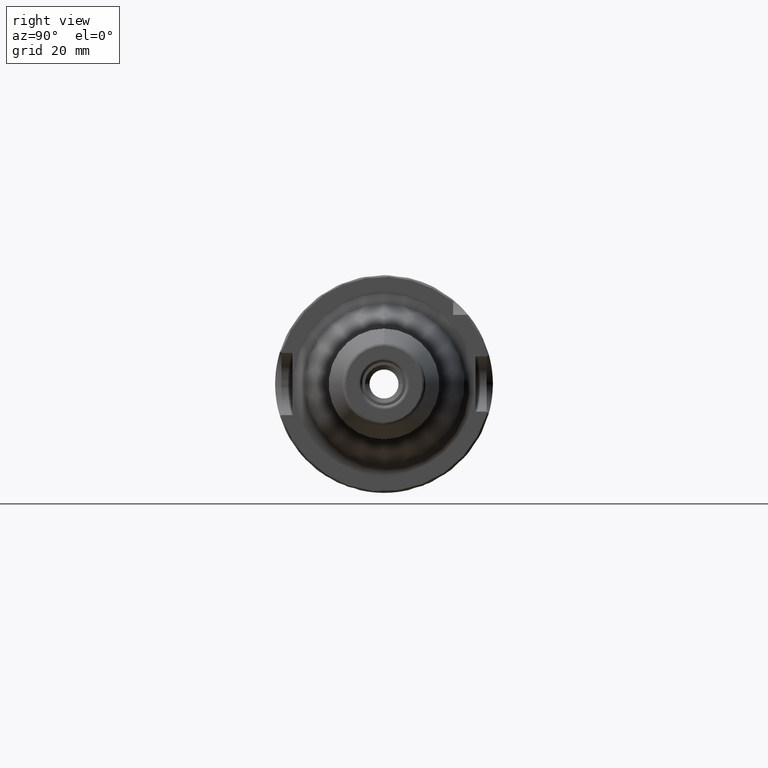
[diagram: clean part render]
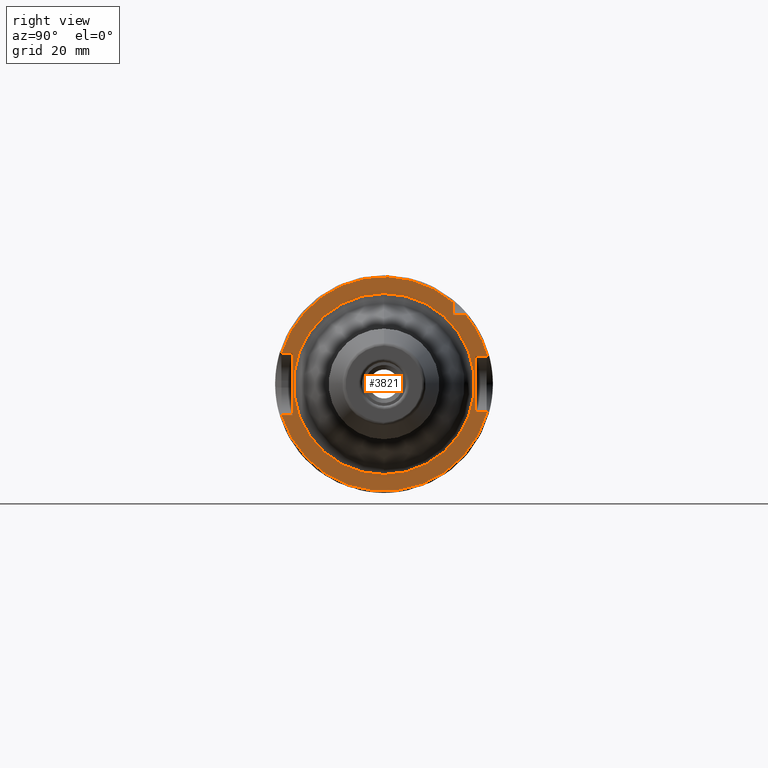
[diagram: same view with one face highlighted and labeled with its STEP entity id]
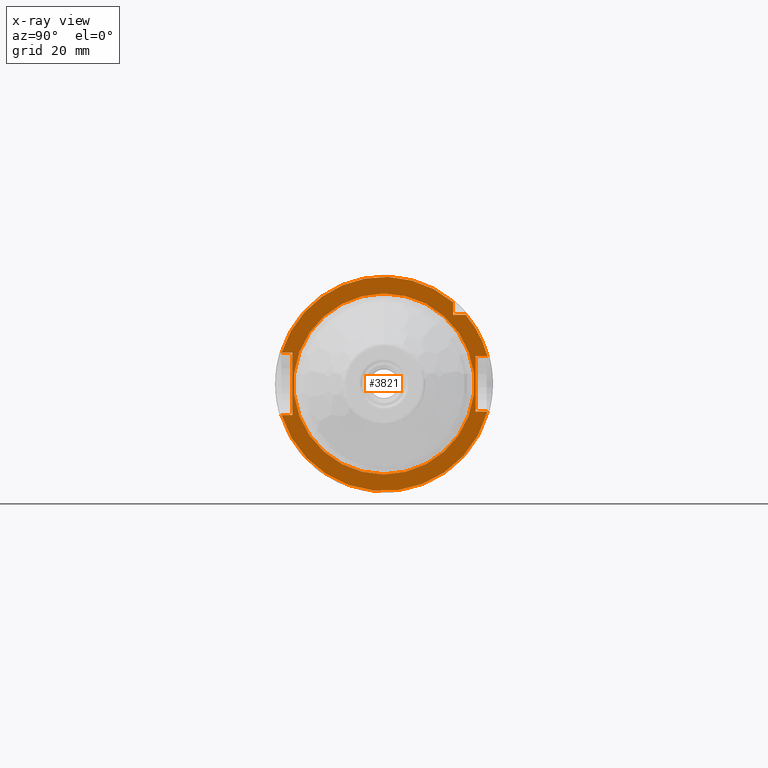
[diagram: x-ray of the same camera — body ghosted, the highlighted face saturated]
A machine part, right view. The second image highlights one B-rep face of the part: STEP entity #3821.
The next image is the same camera in x-ray: the body ghosted, the highlighted face saturated — about 0% of this face is hidden behind the body in this view.
In plain terms, the highlighted planar face has unit normal (1, 0, 0).
Its self-contained STEP definition (entity closure, byte-faithful):
#658=DIRECTION('',(0.E0,1.E0,0.E0));
#659=VECTOR('',#658,3.164793948383E0);
#660=CARTESIAN_POINT('',(2.6E1,-2.966479394838E1,-9.E0));
#661=LINE('',#660,#659);
#662=DIRECTION('',(0.E0,0.E0,1.E0));
#663=VECTOR('',#662,1.8E1);
#664=CARTESIAN_POINT('',(2.6E1,-2.65E1,-9.E0));
#665=LINE('',#664,#663);
#666=DIRECTION('',(0.E0,1.E0,0.E0));
#667=VECTOR('',#666,3.164793948383E0);
#668=CARTESIAN_POINT('',(2.6E1,-2.966479394838E1,9.E0));
#669=LINE('',#668,#667);
#670=DIRECTION('',(0.E0,0.E0,-1.E0));
#671=VECTOR('',#670,3.685438564654E0);
#672=CARTESIAN_POINT('',(2.6E1,2.E1,2.368543856465E1));
#673=LINE('',#672,#671);
#674=DIRECTION('',(0.E0,-1.E0,0.E0));
#675=VECTOR('',#674,3.685438564654E0);
#676=CARTESIAN_POINT('',(2.6E1,2.368543856465E1,2.E1));
#677=LINE('',#676,#675);
#678=DIRECTION('',(0.E0,-7.071067811866E-1,-7.071067811865E-1));
#679=VECTOR('',#678,2.782025045905E-1);
#680=CARTESIAN_POINT('',(2.6E1,2.989671887754E1,8.196718877539E0));
#681=LINE('',#680,#679);
#682=DIRECTION('',(0.E0,-1.E0,0.E0));
#683=VECTOR('',#682,3.2E0);
#684=CARTESIAN_POINT('',(2.6E1,2.97E1,8.E0));
#685=LINE('',#684,#683);
#686=DIRECTION('',(0.E0,0.E0,1.E0));
#687=VECTOR('',#686,1.6E1);
#688=CARTESIAN_POINT('',(2.6E1,2.65E1,-8.E0));
#689=LINE('',#688,#687);
#690=DIRECTION('',(0.E0,-1.E0,0.E0));
#691=VECTOR('',#690,3.2E0);
#692=CARTESIAN_POINT('',(2.6E1,2.97E1,-8.E0));
#693=LINE('',#692,#691);
#694=DIRECTION('',(0.E0,-7.071067811865E-1,7.071067811866E-1));
#695=VECTOR('',#694,2.782025045903E-1);
#696=CARTESIAN_POINT('',(2.6E1,2.989671887754E1,-8.196718877539E0));
#697=LINE('',#696,#695);
#698=CARTESIAN_POINT('',(2.6E1,0.E0,0.E0));
#699=DIRECTION('',(1.E0,0.E0,0.E0));
#700=DIRECTION('',(0.E0,0.E0,-1.E0));
#701=AXIS2_PLACEMENT_3D('',#698,#699,#700);
#703=CARTESIAN_POINT('',(2.6E1,0.E0,0.E0));
#704=DIRECTION('',(1.E0,0.E0,0.E0));
#705=DIRECTION('',(0.E0,0.E0,1.E0));
#706=AXIS2_PLACEMENT_3D('',#703,#704,#705);
#713=CARTESIAN_POINT('',(2.6E1,0.E0,0.E0));
#714=DIRECTION('',(1.E0,0.E0,0.E0));
#715=DIRECTION('',(0.E0,-9.569288370446E-1,-2.903225806452E-1));
#716=AXIS2_PLACEMENT_3D('',#713,#714,#715);
#838=CARTESIAN_POINT('',(2.6E1,2.989671887754E1,-8.196718877539E0));
#2016=CARTESIAN_POINT('',(2.6E1,-2.966479394838E1,9.E0));
#2151=CARTESIAN_POINT('',(2.6E1,-2.966479394838E1,-9.E0));
#2344=CARTESIAN_POINT('',(2.6E1,2.989671887754E1,8.196718877539E0));
#2363=CARTESIAN_POINT('',(2.6E1,0.E0,0.E0));
#2364=DIRECTION('',(1.E0,0.E0,0.E0));
#2365=DIRECTION('',(0.E0,9.644102863722E-1,2.644102863722E-1));
#2366=AXIS2_PLACEMENT_3D('',#2363,#2364,#2365);
#2368=CARTESIAN_POINT('',(2.6E1,2.368543856465E1,2.E1));
#2393=CARTESIAN_POINT('',(2.6E1,2.E1,2.368543856465E1));
#2408=CARTESIAN_POINT('',(2.6E1,0.E0,0.E0));
#2409=DIRECTION('',(1.E0,0.E0,0.E0));
#2410=DIRECTION('',(0.E0,6.451612903226E-1,7.640464053114E-1));
#2411=AXIS2_PLACEMENT_3D('',#2408,#2409,#2410);
#2611=CARTESIAN_POINT('',(2.6E1,2.65E1,-8.E0));
#2612=CARTESIAN_POINT('',(2.6E1,2.65E1,8.E0));
#2613=VERTEX_POINT('',#2611);
#2614=VERTEX_POINT('',#2612);
#2643=CARTESIAN_POINT('',(2.6E1,-2.65E1,-9.E0));
#2644=CARTESIAN_POINT('',(2.6E1,-2.65E1,9.E0));
#2645=VERTEX_POINT('',#2643);
#2646=VERTEX_POINT('',#2644);
#2701=CARTESIAN_POINT('',(2.6E1,2.E1,2.E1));
#2702=VERTEX_POINT('',#2701);
#2914=CARTESIAN_POINT('',(2.6E1,2.97E1,-8.E0));
#2915=VERTEX_POINT('',#2914);
#2916=CARTESIAN_POINT('',(2.6E1,2.97E1,8.E0));
#2917=VERTEX_POINT('',#2916);
#2930=VERTEX_POINT('',#2151);
#2931=VERTEX_POINT('',#838);
#2934=VERTEX_POINT('',#2344);
#2935=VERTEX_POINT('',#2368);
#2938=VERTEX_POINT('',#2393);
#2939=VERTEX_POINT('',#2016);
#3006=CARTESIAN_POINT('',(2.6E1,0.E0,-2.619706528738E1));
#3007=CARTESIAN_POINT('',(2.6E1,0.E0,2.619706528738E1));
#3008=VERTEX_POINT('',#3006);
#3009=VERTEX_POINT('',#3007);
#3783=CARTESIAN_POINT('',(2.6E1,0.E0,0.E0));
#3784=DIRECTION('',(1.E0,0.E0,0.E0));
#3785=DIRECTION('',(0.E0,0.E0,1.E0));
#3786=AXIS2_PLACEMENT_3D('',#3783,#3784,#3785);
#3787=PLANE('',#3786);
#3789=ORIENTED_EDGE('',*,*,#3788,.F.);
#3791=ORIENTED_EDGE('',*,*,#3790,.T.);
#3793=ORIENTED_EDGE('',*,*,#3792,.T.);
#3795=ORIENTED_EDGE('',*,*,#3794,.F.);
#3797=ORIENTED_EDGE('',*,*,#3796,.F.);
#3799=ORIENTED_EDGE('',*,*,#3798,.T.);
#3801=ORIENTED_EDGE('',*,*,#3800,.F.);
#3803=ORIENTED_EDGE('',*,*,#3802,.F.);
#3805=ORIENTED_EDGE('',*,*,#3804,.T.);
#3807=ORIENTED_EDGE('',*,*,#3806,.T.);
#3809=ORIENTED_EDGE('',*,*,#3808,.F.);
#3811=ORIENTED_EDGE('',*,*,#3810,.F.);
#3813=ORIENTED_EDGE('',*,*,#3812,.F.);
#3814=EDGE_LOOP('',(#3789,#3791,#3793,#3795,#3797,#3799,#3801,#3803,#3805,#3807,
#3809,#3811,#3813));
#3815=FACE_OUTER_BOUND('',#3814,.F.);
#3817=ORIENTED_EDGE('',*,*,#3816,.T.);
#3818=ORIENTED_EDGE('',*,*,#3773,.T.);
#3819=EDGE_LOOP('',(#3817,#3818));
#3820=FACE_BOUND('',#3819,.F.);
#3821=ADVANCED_FACE('',(#3815,#3820),#3787,.T.);
#702=CIRCLE('',#701,2.619706528738E1);
#707=CIRCLE('',#706,2.619706528738E1);
#717=CIRCLE('',#716,3.1E1);
#2367=CIRCLE('',#2366,3.1E1);
#2412=CIRCLE('',#2411,3.1E1);
#3773=EDGE_CURVE('',#3009,#3008,#707,.T.);
#3788=EDGE_CURVE('',#2930,#2931,#717,.T.);
#3790=EDGE_CURVE('',#2930,#2645,#661,.T.);
#3792=EDGE_CURVE('',#2645,#2646,#665,.T.);
#3794=EDGE_CURVE('',#2939,#2646,#669,.T.);
#3796=EDGE_CURVE('',#2938,#2939,#2412,.T.);
#3798=EDGE_CURVE('',#2938,#2702,#673,.T.);
#3800=EDGE_CURVE('',#2935,#2702,#677,.T.);
#3802=EDGE_CURVE('',#2934,#2935,#2367,.T.);
#3804=EDGE_CURVE('',#2934,#2917,#681,.T.);
#3806=EDGE_CURVE('',#2917,#2614,#685,.T.);
#3808=EDGE_CURVE('',#2613,#2614,#689,.T.);
#3810=EDGE_CURVE('',#2915,#2613,#693,.T.);
#3812=EDGE_CURVE('',#2931,#2915,#697,.T.);
#3816=EDGE_CURVE('',#3008,#3009,#702,.T.);